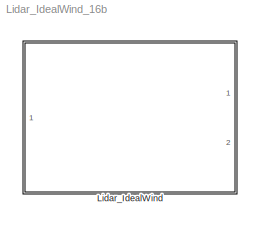
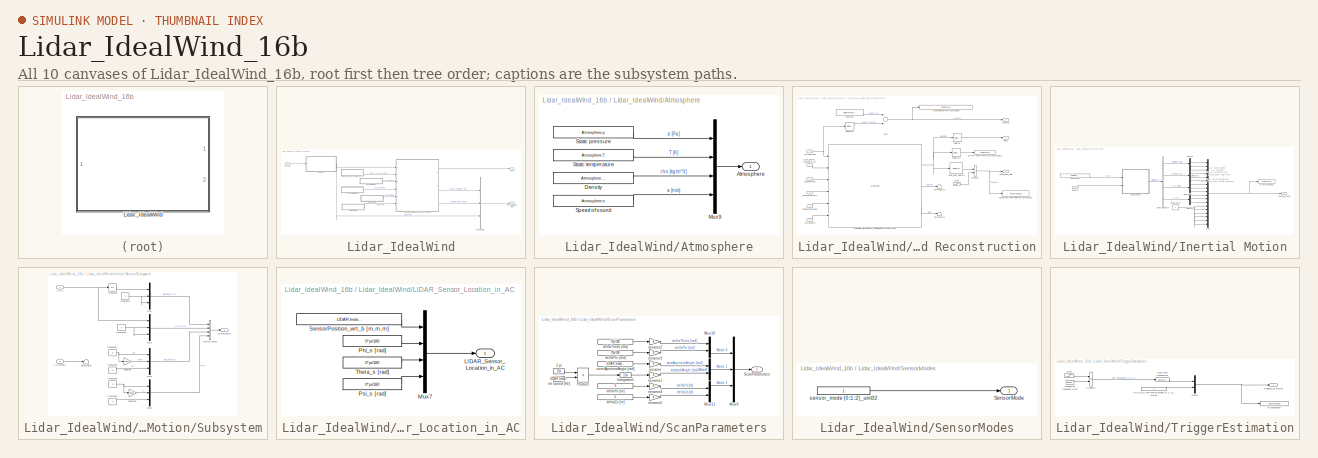
[diagram: thumbnail index - all 10 canvases of the model, root first then tree order]
MODEL Lidar_IdealWind_16b
KIND library
BLOCK [SubSystem] Lidar_IdealWind
  Ports = [1, 2]
  RequestExecContextInheritance = off
  SID = 159
BLOCK [SubSystem] Lidar_IdealWind/Atmosphere
  Ports = [0, 1]
  RequestExecContextInheritance = off
  SID = 161
BLOCK [Outport] Lidar_IdealWind/Atmosphere/Atmosphere
  IconDisplay = Port number
  SID = 167
BLOCK [Constant] Lidar_IdealWind/Atmosphere/Density
  SID = 162
  Value = Atmosphere.rho
BLOCK [Mux] Lidar_IdealWind/Atmosphere/Mux9
  DisplayOption = bar
  Ports = [4, 1]
  SID = 163
BLOCK [Constant] Lidar_IdealWind/Atmosphere/Speed of sound
  SID = 164
  Value = Atmosphere.a
BLOCK [Constant] Lidar_IdealWind/Atmosphere/Static pressure
  SID = 165
  Value = Atmosphere.p
BLOCK [Constant] Lidar_IdealWind/Atmosphere/Static temperature
  SID = 166
  Value = Atmosphere.T
BLOCK [BusCreator] Lidar_IdealWind/Bus\nCreator
  DisplayOption = bar
  InheritFromInputs = on
  Inputs = 3
  Ports = [3, 1]
  SID = 168
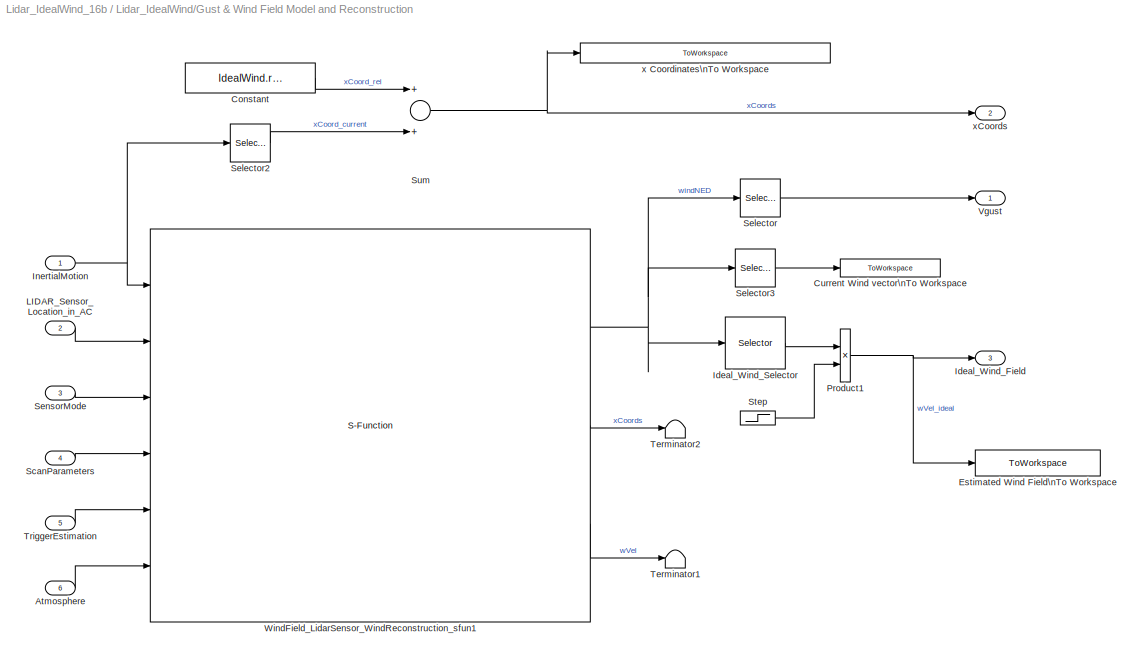
BLOCK [SubSystem] Lidar_IdealWind/Gust & Wind Field Model and Reconstruction
  Ports = [6, 3]
  RequestExecContextInheritance = off
  SID = 169
BLOCK [Inport] Lidar_IdealWind/Gust & Wind Field Model and Reconstruction/Atmosphere
  IconDisplay = Port number
  Port = 6
  SID = 175
BLOCK [Constant] Lidar_IdealWind/Gust & Wind Field Model and Reconstruction/Constant
  SID = 176
  Value = IdealWind.rel_x_coords
BLOCK [ToWorkspace] Lidar_IdealWind/Gust & Wind Field Model and Reconstruction/Current Wind vector\nTo Workspace
  MaxDataPoints = inf
  Ports = [1]
  SID = 264
  SampleTime = -1
  SaveFormat = Structure
  VariableName = Current_Wind
BLOCK [ToWorkspace] Lidar_IdealWind/Gust & Wind Field Model and Reconstruction/Estimated Wind Field\nTo Workspace
  Decimation = SimConfig.Logging.DecimationFactor
  MaxDataPoints = inf
  Ports = [1]
  SID = 267
  SampleTime = -1
  SaveFormat = Structure With Time
  VariableName = Estimated_Wind_Field
BLOCK [Outport] Lidar_IdealWind/Gust & Wind Field Model and Reconstruction/Ideal_Wind_Field
  IconDisplay = Port number
  Port = 3
  SID = 189
BLOCK [Selector] Lidar_IdealWind/Gust & Wind Field Model and Reconstruction/Ideal_Wind_Selector
  IndexOptions = Starting index (dialog)
  Indices = 4
  OutputSizes = IdealWind.n_nodes
  Ports = [1, 1]
  SID = 178
BLOCK [Inport] Lidar_IdealWind/Gust & Wind Field Model and Reconstruction/InertialMotion
  IconDisplay = Port number
  SID = 170
BLOCK [Inport] Lidar_IdealWind/Gust & Wind Field Model and Reconstruction/LIDAR_Sensor_Location_in_AC
  IconDisplay = Port number
  Port = 2
  SID = 171
BLOCK [Product] Lidar_IdealWind/Gust & Wind Field Model and Reconstruction/Product1
  InputSameDT = off
  OutDataTypeStr = Inherit: Inherit via internal rule
  Ports = [2, 1]
  SID = 268
  SaturateOnIntegerOverflow = off
BLOCK [Inport] Lidar_IdealWind/Gust & Wind Field Model and Reconstruction/ScanParameters
  IconDisplay = Port number
  Port = 4
  SID = 173
BLOCK [Selector] Lidar_IdealWind/Gust & Wind Field Model and Reconstruction/Selector
  IndexOptions = Index vector (dialog)
  Indices = 3
  OutputSizes = 1
  Ports = [1, 1]
  SID = 177
BLOCK [Selector] Lidar_IdealWind/Gust & Wind Field Model and Reconstruction/Selector2
  IndexOptions = Index vector (dialog)
  Indices = 1
  OutputSizes = 1
  Ports = [1, 1]
  SID = 179
BLOCK [Selector] Lidar_IdealWind/Gust & Wind Field Model and Reconstruction/Selector3
  IndexOptions = Index vector (dialog)
  Indices = 1:3
  OutputSizes = 1
  Ports = [1, 1]
  SID = 265
BLOCK [Inport] Lidar_IdealWind/Gust & Wind Field Model and Reconstruction/SensorMode
  IconDisplay = Port number
  Port = 3
  SID = 172
BLOCK [Step] Lidar_IdealWind/Gust & Wind Field Model and Reconstruction/Step
  SID = 269
  SampleTime = 0
  Time = WindReconstruction.StartEstimationTime
BLOCK [Sum] Lidar_IdealWind/Gust & Wind Field Model and Reconstruction/Sum
  InputSameDT = off
  OutDataTypeStr = Inherit: Inherit via internal rule
  Ports = [2, 1]
  SID = 180
  SaturateOnIntegerOverflow = off
BLOCK [Terminator] Lidar_IdealWind/Gust & Wind Field Model and Reconstruction/Terminator1
  SID = 181
BLOCK [Terminator] Lidar_IdealWind/Gust & Wind Field Model and Reconstruction/Terminator2
  SID = 182
BLOCK [Inport] Lidar_IdealWind/Gust & Wind Field Model and Reconstruction/TriggerEstimation
  IconDisplay = Port number
  Port = 5
  SID = 174
BLOCK [Outport] Lidar_IdealWind/Gust & Wind Field Model and Reconstruction/Vgust
  IconDisplay = Port number
  SID = 187
BLOCK [S-Function] Lidar_IdealWind/Gust & Wind Field Model and Reconstruction/WindField_LidarSensor_WindReconstruction_sfun1
  EnableBusSupport = off
  FunctionName = WindField_LidarSensor_WindReconstruction_sfun_v1d4p
  Parameters = Atmosphere,LIDAR,WindReconstruction
  Ports = [6, 3]
  SFcnIsStateOwnerBlock = off
  SFunctionDeploymentMode = off
  SID = 271
BLOCK [ToWorkspace] Lidar_IdealWind/Gust & Wind Field Model and Reconstruction/x Coordinates\nTo Workspace
  Decimation = SimConfig.Logging.DecimationFactor
  MaxDataPoints = inf
  Ports = [1]
  SID = 266
  SampleTime = -1
  SaveFormat = Structure With Time
  VariableName = xCoords_Estimated_Wind_Field_Nodes
BLOCK [Outport] Lidar_IdealWind/Gust & Wind Field Model and Reconstruction/xCoords
  IconDisplay = Port number
  Port = 2
  SID = 188
BLOCK [SubSystem] Lidar_IdealWind/Inertial Motion
  Ports = [1, 1]
  RequestExecContextInheritance = off
  SID = 190
BLOCK [BusSelector] Lidar_IdealWind/Inertial Motion/Bus\nSelector
  OutputSignals = DeltaPos_o [m],phi_theta_psi,V_K_o [m/s],p_q_r
  Ports = [1, 4]
  SID = 192
BLOCK [Constant] Lidar_IdealWind/Inertial Motion/Constant13
  SID = 193
  Value = 0
BLOCK [Constant] Lidar_IdealWind/Inertial Motion/Constant8
  SID = 194
  Value = CRM.Flight_Point.Vt
BLOCK [Demux] Lidar_IdealWind/Inertial Motion/Demux
  DisplayOption = bar
  Outputs = 3
  Ports = [1, 3]
  SID = 195
BLOCK [Demux] Lidar_IdealWind/Inertial Motion/Demux1
  DisplayOption = bar
  Outputs = 3
  Ports = [1, 3]
  SID = 196
BLOCK [Demux] Lidar_IdealWind/Inertial Motion/Demux2
  DisplayOption = bar
  Outputs = 3
  Ports = [1, 3]
  SID = 197
BLOCK [Demux] Lidar_IdealWind/Inertial Motion/Demux3
  DisplayOption = bar
  Outputs = 3
  Ports = [1, 3]
  SID = 198
BLOCK [Outport] Lidar_IdealWind/Inertial Motion/Inertial_Motion
  IconDisplay = Port number
  SID = 220
BLOCK [Mux] Lidar_IdealWind/Inertial Motion/Mux
  DisplayOption = bar
  Inputs = 18
  Ports = [18, 1]
  SID = 199
BLOCK [Inport] Lidar_IdealWind/Inertial Motion/Sensors
  IconDisplay = Port number
  SID = 191
BLOCK [SubSystem] Lidar_IdealWind/Inertial Motion/Subsystem
  Ports = [2, 1]
  RequestExecContextInheritance = off
  SID = 200
BLOCK [Inport] Lidar_IdealWind/Inertial Motion/Subsystem/ACOutputs
  IconDisplay = Port number
  Port = 2
  SID = 202
BLOCK [BusCreator] Lidar_IdealWind/Inertial Motion/Subsystem/Bus\nCreator
  DisplayOption = bar
  InheritFromInputs = on
  Inputs = 4
  Ports = [4, 1]
  SID = 203
BLOCK [Constant] Lidar_IdealWind/Inertial Motion/Subsystem/Constant1
  SID = 204
  Value = 0
BLOCK [Constant] Lidar_IdealWind/Inertial Motion/Subsystem/Constant2
  SID = 205
  Value = 0
BLOCK [Constant] Lidar_IdealWind/Inertial Motion/Subsystem/Constant3
  SID = 206
  Value = 0
BLOCK [Constant] Lidar_IdealWind/Inertial Motion/Subsystem/Constant4
  SID = 207
  Value = 0
BLOCK [Constant] Lidar_IdealWind/Inertial Motion/Subsystem/Constant5
  SID = 208
  Value = 0
BLOCK [Constant] Lidar_IdealWind/Inertial Motion/Subsystem/Constant6
  SID = 209
  Value = 0
BLOCK [Integrator] Lidar_IdealWind/Inertial Motion/Subsystem/Integrator
  Ports = [1, 1]
  SID = 210
BLOCK [Mux] Lidar_IdealWind/Inertial Motion/Subsystem/Mux
  DisplayOption = bar
  Inputs = 3
  Ports = [3, 1]
  SID = 211
BLOCK [Mux] Lidar_IdealWind/Inertial Motion/Subsystem/Mux1
  DisplayOption = bar
  Inputs = 3
  Ports = [3, 1]
  SID = 212
BLOCK [Mux] Lidar_IdealWind/Inertial Motion/Subsystem/Mux2
  DisplayOption = bar
  Inputs = 3
  Ports = [3, 1]
  SID = 213
BLOCK [Mux] Lidar_IdealWind/Inertial Motion/Subsystem/Mux3
  DisplayOption = bar
  Inputs = 3
  Ports = [3, 1]
  SID = 214
BLOCK [Outport] Lidar_IdealWind/Inertial Motion/Subsystem/RigidBody_o
  IconDisplay = Port number
  SID = 218
BLOCK [Terminator] Lidar_IdealWind/Inertial Motion/Subsystem/Terminator
  SID = 215
BLOCK [Inport] Lidar_IdealWind/Inertial Motion/Subsystem/VTAS
  IconDisplay = Port number
  SID = 201
BLOCK [Gain] Lidar_IdealWind/Inertial Motion/Subsystem/deg2rad
  Gain = pi/180
  OutDataTypeStr = Inherit: Inherit via internal rule
  ParamDataTypeStr = Inherit: Inherit via internal rule
  SID = 216
  SaturateOnIntegerOverflow = off
BLOCK [Gain] Lidar_IdealWind/Inertial Motion/Subsystem/deg2rad1
  Gain = pi/180
  OutDataTypeStr = Inherit: Inherit via internal rule
  ParamDataTypeStr = Inherit: Inherit via internal rule
  SID = 217
  SaturateOnIntegerOverflow = off
BLOCK [ToWorkspace] Lidar_IdealWind/Inertial Motion/To Workspace2
  Decimation = SimConfig.Logging.DecimationFactor
  MaxDataPoints = inf
  Ports = [1]
  SID = 219
  SampleTime = -1
  SaveFormat = Structure
  VariableName = Inertial_Motion
BLOCK [SubSystem] Lidar_IdealWind/LIDAR_Sensor_Location_in_AC
  Ports = [0, 1]
  RequestExecContextInheritance = off
  SID = 222
BLOCK [Outport] Lidar_IdealWind/LIDAR_Sensor_Location_in_AC/LIDAR_Sensor_Location_in_AC
  IconDisplay = Port number
  SID = 228
BLOCK [Mux] Lidar_IdealWind/LIDAR_Sensor_Location_in_AC/Mux7
  DisplayOption = bar
  Ports = [4, 1]
  SID = 223
BLOCK [Constant] Lidar_IdealWind/LIDAR_Sensor_Location_in_AC/Phi_s [rad]
  SID = 224
  Value = 0*pi/180
BLOCK [Constant] Lidar_IdealWind/LIDAR_Sensor_Location_in_AC/Psi_s [rad]
  SID = 225
  Value = 0*pi/180
BLOCK [Constant] Lidar_IdealWind/LIDAR_Sensor_Location_in_AC/SensorPosition_wrt_b [m,m,m]
  SID = 226
  Value = LIDAR.Installation.Position_b
BLOCK [Constant] Lidar_IdealWind/LIDAR_Sensor_Location_in_AC/Theta_s [rad]
  SID = 227
  Value = 0*pi/180
BLOCK [Outport] Lidar_IdealWind/Reconstructed_Wind
  IconDisplay = Port number
  Port = 2
  SID = 263
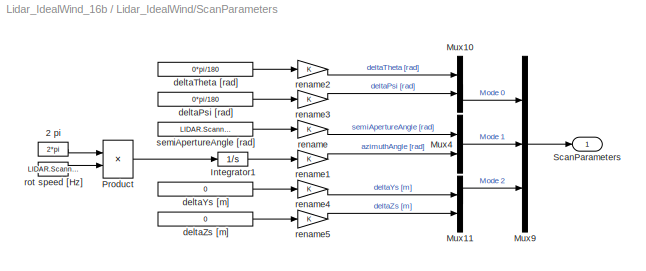
BLOCK [SubSystem] Lidar_IdealWind/ScanParameters
  Ports = [0, 1]
  RequestExecContextInheritance = off
  SID = 229
BLOCK [Constant] Lidar_IdealWind/ScanParameters/2 pi
  SID = 230
  Value = 2*pi
BLOCK [Integrator] Lidar_IdealWind/ScanParameters/Integrator1
  Ports = [1, 1]
  SID = 231
BLOCK [Mux] Lidar_IdealWind/ScanParameters/Mux10
  DisplayOption = bar
  Inputs = 2
  Ports = [2, 1]
  SID = 232
BLOCK [Mux] Lidar_IdealWind/ScanParameters/Mux11
  DisplayOption = bar
  Inputs = 2
  Ports = [2, 1]
  SID = 233
BLOCK [Mux] Lidar_IdealWind/ScanParameters/Mux4
  DisplayOption = bar
  Inputs = 2
  Ports = [2, 1]
  SID = 234
BLOCK [Mux] Lidar_IdealWind/ScanParameters/Mux9
  DisplayOption = bar
  Inputs = 3
  Ports = [3, 1]
  SID = 235
BLOCK [Product] Lidar_IdealWind/ScanParameters/Product
  InputSameDT = off
  OutDataTypeStr = Inherit: Inherit via internal rule
  Ports = [2, 1]
  SID = 236
  SaturateOnIntegerOverflow = off
BLOCK [Outport] Lidar_IdealWind/ScanParameters/ScanParameters
  IconDisplay = Port number
  SID = 249
BLOCK [Constant] Lidar_IdealWind/ScanParameters/deltaPsi [rad]
  OutDataTypeStr = double
  SID = 237
  Value = 0*pi/180
BLOCK [Constant] Lidar_IdealWind/ScanParameters/deltaTheta [rad]
  OutDataTypeStr = double
  SID = 238
  Value = 0*pi/180
BLOCK [Constant] Lidar_IdealWind/ScanParameters/deltaYs [m]
  OutDataTypeStr = double
  SID = 239
  Value = 0
BLOCK [Constant] Lidar_IdealWind/ScanParameters/deltaZs [m]
  OutDataTypeStr = double
  SID = 240
  Value = 0
BLOCK [Gain] Lidar_IdealWind/ScanParameters/rename
  OutDataTypeStr = Inherit: Inherit via internal rule
  ParamDataTypeStr = Inherit: Inherit via internal rule
  SID = 241
  SaturateOnIntegerOverflow = off
BLOCK [Gain] Lidar_IdealWind/ScanParameters/rename1
  OutDataTypeStr = Inherit: Inherit via internal rule
  ParamDataTypeStr = Inherit: Inherit via internal rule
  SID = 242
  SaturateOnIntegerOverflow = off
BLOCK [Gain] Lidar_IdealWind/ScanParameters/rename2
  OutDataTypeStr = Inherit: Inherit via internal rule
  ParamDataTypeStr = Inherit: Inherit via internal rule
  SID = 243
  SaturateOnIntegerOverflow = off
BLOCK [Gain] Lidar_IdealWind/ScanParameters/rename3
  OutDataTypeStr = Inherit: Inherit via internal rule
  ParamDataTypeStr = Inherit: Inherit via internal rule
  SID = 244
  SaturateOnIntegerOverflow = off
BLOCK [Gain] Lidar_IdealWind/ScanParameters/rename4
  OutDataTypeStr = Inherit: Inherit via internal rule
  ParamDataTypeStr = Inherit: Inherit via internal rule
  SID = 245
  SaturateOnIntegerOverflow = off
BLOCK [Gain] Lidar_IdealWind/ScanParameters/rename5
  OutDataTypeStr = Inherit: Inherit via internal rule
  ParamDataTypeStr = Inherit: Inherit via internal rule
  SID = 246
  SaturateOnIntegerOverflow = off
BLOCK [Constant] Lidar_IdealWind/ScanParameters/rot speed [Hz]
  SID = 247
  Value = LIDAR.Scanner.RotationFrequency
BLOCK [Constant] Lidar_IdealWind/ScanParameters/semiApertureAngle [rad]
  OutDataTypeStr = double
  SID = 248
  Value = LIDAR.Scanner.SemiApertureAngle*pi/180
BLOCK [SubSystem] Lidar_IdealWind/SensorModes
  Ports = [0, 1]
  RequestExecContextInheritance = off
  SID = 250
BLOCK [Outport] Lidar_IdealWind/SensorModes/SensorMode
  IconDisplay = Port number
  SID = 252
BLOCK [Constant] Lidar_IdealWind/SensorModes/sensor_mode {0::1::2}_uint32
  OutDataTypeStr = uint32
  SID = 251
BLOCK [Inport] Lidar_IdealWind/Sensors
  IconDisplay = Port number
  SID = 160
BLOCK [SubSystem] Lidar_IdealWind/TriggerEstimation
  Ports = [0, 1]
  RequestExecContextInheritance = off
  SID = 253
BLOCK [DataTypeConversion] Lidar_IdealWind/TriggerEstimation/Data Type Conversion
  OutDataTypeStr = uint32
  RndMeth = Floor
  SID = 254
  SaturateOnIntegerOverflow = off
BLOCK [Mux] Lidar_IdealWind/TriggerEstimation/Mux12
  DisplayOption = bar
  Inputs = 2
  Ports = [2, 1]
  SID = 255
BLOCK [Product] Lidar_IdealWind/TriggerEstimation/Product1
  InputSameDT = off
  OutDataTypeStr = Inherit: Inherit via internal rule
  Ports = [2, 1]
  SID = 256
  SaturateOnIntegerOverflow = off
BLOCK [Reference] Lidar_IdealWind/TriggerEstimation/Repeating Sequence Stair  REF=simulink/Sources/Repeating\nSequence\nStair
  ConRadixGroup = Best Precision: Vector-wise
  LockScale = off
  OutDataType = float('double')
  OutDataTypeStr = float('double')
  OutMax = []
  OutMin = []
  OutScaling = 2^-12
  OutValues = [0 zeros(1,(1/(10*SimConfig.SampleTime))-1)].'
  OutputDataTypeScalingMode = Specify via dialog
  Ports = [0, 1]
  SID = 257
  SourceBlock = simulink/Sources/Repeating\nSequence\nStair
  SourceType = Repeating Sequence Stair
  tsamp = -1
BLOCK [Step] Lidar_IdealWind/TriggerEstimation/Step
  SID = 258
  SampleTime = 0
  Time = WindReconstruction.StartEstimationTime
BLOCK [ToWorkspace] Lidar_IdealWind/TriggerEstimation/To Workspace
  MaxDataPoints = inf
  Ports = [1]
  SID = 259
  SampleTime = -1
  SaveFormat = Structure
  VariableName = TriggerEstimation
BLOCK [Outport] Lidar_IdealWind/TriggerEstimation/TriggerEstimation
  IconDisplay = Port number
  SID = 261
BLOCK [Constant] Lidar_IdealWind/TriggerEstimation/UNUSED estimation_mode {0::1::2}_uint32
  OutDataTypeStr = uint32
  SID = 260
  Value = 2
BLOCK [Outport] Lidar_IdealWind/Vgust
  IconDisplay = Port number
  SID = 262
ANNOTATION Lidar_IdealWind/Inertial Motion: 1-3: delta position\n4-6: attitude\n7-9: inertial speed (flight path)\n10-12:rotational rates\n13-15: inertial acceleration\n16-18: third order position derivative
LINE Lidar_IdealWind/Atmosphere/Density:1 -> Lidar_IdealWind/Atmosphere/Mux9:3
LINE Lidar_IdealWind/Atmosphere/Mux9:1 -> Lidar_IdealWind/Atmosphere/Atmosphere:1
LINE Lidar_IdealWind/Atmosphere/Speed of sound:1 -> Lidar_IdealWind/Atmosphere/Mux9:4
LINE Lidar_IdealWind/Atmosphere/Static pressure:1 -> Lidar_IdealWind/Atmosphere/Mux9:1
LINE Lidar_IdealWind/Atmosphere/Static temperature:1 -> Lidar_IdealWind/Atmosphere/Mux9:2
LINE Lidar_IdealWind/Atmosphere:1 -> Lidar_IdealWind/Gust & Wind Field Model and Reconstruction:6
LINE Lidar_IdealWind/Bus\nCreator:1 -> Lidar_IdealWind/Reconstructed_Wind:1
LINE Lidar_IdealWind/Gust & Wind Field Model and Reconstruction/Atmosphere:1 -> Lidar_IdealWind/Gust & Wind Field Model and Reconstruction/WindField_LidarSensor_WindReconstruction_sfun1:6
LINE Lidar_IdealWind/Gust & Wind Field Model and Reconstruction/Constant:1 -> Lidar_IdealWind/Gust & Wind Field Model and Reconstruction/Sum:1
LINE Lidar_IdealWind/Gust & Wind Field Model and Reconstruction/Ideal_Wind_Selector:1 -> Lidar_IdealWind/Gust & Wind Field Model and Reconstruction/Product1:1
NET Lidar_IdealWind/Gust & Wind Field Model and Reconstruction/InertialMotion:1 -> Lidar_IdealWind/Gust & Wind Field Model and Reconstruction/Selector2:1, Lidar_IdealWind/Gust & Wind Field Model and Reconstruction/WindField_LidarSensor_WindReconstruction_sfun1:1
LINE Lidar_IdealWind/Gust & Wind Field Model and Reconstruction/LIDAR_Sensor_Location_in_AC:1 -> Lidar_IdealWind/Gust & Wind Field Model and Reconstruction/WindField_LidarSensor_WindReconstruction_sfun1:2
NET Lidar_IdealWind/Gust & Wind Field Model and Reconstruction/Product1:1 -> Lidar_IdealWind/Gust & Wind Field Model and Reconstruction/Estimated Wind Field\nTo Workspace:1, Lidar_IdealWind/Gust & Wind Field Model and Reconstruction/Ideal_Wind_Field:1
LINE Lidar_IdealWind/Gust & Wind Field Model and Reconstruction/ScanParameters:1 -> Lidar_IdealWind/Gust & Wind Field Model and Reconstruction/WindField_LidarSensor_WindReconstruction_sfun1:4
LINE Lidar_IdealWind/Gust & Wind Field Model and Reconstruction/Selector2:1 -> Lidar_IdealWind/Gust & Wind Field Model and Reconstruction/Sum:2
LINE Lidar_IdealWind/Gust & Wind Field Model and Reconstruction/Selector3:1 -> Lidar_IdealWind/Gust & Wind Field Model and Reconstruction/Current Wind vector\nTo Workspace:1
LINE Lidar_IdealWind/Gust & Wind Field Model and Reconstruction/Selector:1 -> Lidar_IdealWind/Gust & Wind Field Model and Reconstruction/Vgust:1
LINE Lidar_IdealWind/Gust & Wind Field Model and Reconstruction/SensorMode:1 -> Lidar_IdealWind/Gust & Wind Field Model and Reconstruction/WindField_LidarSensor_WindReconstruction_sfun1:3
LINE Lidar_IdealWind/Gust & Wind Field Model and Reconstruction/Step:1 -> Lidar_IdealWind/Gust & Wind Field Model and Reconstruction/Product1:2
NET Lidar_IdealWind/Gust & Wind Field Model and Reconstruction/Sum:1 -> Lidar_IdealWind/Gust & Wind Field Model and Reconstruction/x Coordinates\nTo Workspace:1, Lidar_IdealWind/Gust & Wind Field Model and Reconstruction/xCoords:1
LINE Lidar_IdealWind/Gust & Wind Field Model and Reconstruction/TriggerEstimation:1 -> Lidar_IdealWind/Gust & Wind Field Model and Reconstruction/WindField_LidarSensor_WindReconstruction_sfun1:5
NET Lidar_IdealWind/Gust & Wind Field Model and Reconstruction/WindField_LidarSensor_WindReconstruction_sfun1:1 -> Lidar_IdealWind/Gust & Wind Field Model and Reconstruction/Ideal_Wind_Selector:1, Lidar_IdealWind/Gust & Wind Field Model and Reconstruction/Selector3:1, Lidar_IdealWind/Gust & Wind Field Model and Reconstruction/Selector:1
LINE Lidar_IdealWind/Gust & Wind Field Model and Reconstruction/WindField_LidarSensor_WindReconstruction_sfun1:2 -> Lidar_IdealWind/Gust & Wind Field Model and Reconstruction/Terminator2:1
LINE Lidar_IdealWind/Gust & Wind Field Model and Reconstruction/WindField_LidarSensor_WindReconstruction_sfun1:3 -> Lidar_IdealWind/Gust & Wind Field Model and Reconstruction/Terminator1:1
LINE Lidar_IdealWind/Gust & Wind Field Model and Reconstruction:1 -> Lidar_IdealWind/Vgust:1
LINE Lidar_IdealWind/Gust & Wind Field Model and Reconstruction:2 -> Lidar_IdealWind/Bus\nCreator:1
LINE Lidar_IdealWind/Gust & Wind Field Model and Reconstruction:3 -> Lidar_IdealWind/Bus\nCreator:2
LINE Lidar_IdealWind/Inertial Motion/Bus\nSelector:1 -> Lidar_IdealWind/Inertial Motion/Demux:1
LINE Lidar_IdealWind/Inertial Motion/Bus\nSelector:2 -> Lidar_IdealWind/Inertial Motion/Demux1:1
LINE Lidar_IdealWind/Inertial Motion/Bus\nSelector:3 -> Lidar_IdealWind/Inertial Motion/Demux2:1
LINE Lidar_IdealWind/Inertial Motion/Bus\nSelector:4 -> Lidar_IdealWind/Inertial Motion/Demux3:1
NET Lidar_IdealWind/Inertial Motion/Constant13:1 -> Lidar_IdealWind/Inertial Motion/Mux:13, Lidar_IdealWind/Inertial Motion/Mux:14, Lidar_IdealWind/Inertial Motion/Mux:15, Lidar_IdealWind/Inertial Motion/Mux:16, Lidar_IdealWind/Inertial Motion/Mux:17, Lidar_IdealWind/Inertial Motion/Mux:18
LINE Lidar_IdealWind/Inertial Motion/Constant8:1 -> Lidar_IdealWind/Inertial Motion/Subsystem:1
LINE Lidar_IdealWind/Inertial Motion/Demux1:1 -> Lidar_IdealWind/Inertial Motion/Mux:4
LINE Lidar_IdealWind/Inertial Motion/Demux1:2 -> Lidar_IdealWind/Inertial Motion/Mux:5
LINE Lidar_IdealWind/Inertial Motion/Demux1:3 -> Lidar_IdealWind/Inertial Motion/Mux:6
LINE Lidar_IdealWind/Inertial Motion/Demux2:1 -> Lidar_IdealWind/Inertial Motion/Mux:7
LINE Lidar_IdealWind/Inertial Motion/Demux2:2 -> Lidar_IdealWind/Inertial Motion/Mux:8
LINE Lidar_IdealWind/Inertial Motion/Demux2:3 -> Lidar_IdealWind/Inertial Motion/Mux:9
LINE Lidar_IdealWind/Inertial Motion/Demux3:1 -> Lidar_IdealWind/Inertial Motion/Mux:10
LINE Lidar_IdealWind/Inertial Motion/Demux3:2 -> Lidar_IdealWind/Inertial Motion/Mux:11
LINE Lidar_IdealWind/Inertial Motion/Demux3:3 -> Lidar_IdealWind/Inertial Motion/Mux:12
LINE Lidar_IdealWind/Inertial Motion/Demux:1 -> Lidar_IdealWind/Inertial Motion/Mux:1
LINE Lidar_IdealWind/Inertial Motion/Demux:2 -> Lidar_IdealWind/Inertial Motion/Mux:2
LINE Lidar_IdealWind/Inertial Motion/Demux:3 -> Lidar_IdealWind/Inertial Motion/Mux:3
NET Lidar_IdealWind/Inertial Motion/Mux:1 -> Lidar_IdealWind/Inertial Motion/Inertial_Motion:1, Lidar_IdealWind/Inertial Motion/To Workspace2:1
LINE Lidar_IdealWind/Inertial Motion/Sensors:1 -> Lidar_IdealWind/Inertial Motion/Subsystem:2
LINE Lidar_IdealWind/Inertial Motion/Subsystem/ACOutputs:1 -> Lidar_IdealWind/Inertial Motion/Subsystem/Terminator:1
LINE Lidar_IdealWind/Inertial Motion/Subsystem/Bus\nCreator:1 -> Lidar_IdealWind/Inertial Motion/Subsystem/RigidBody_o:1
NET Lidar_IdealWind/Inertial Motion/Subsystem/Constant1:1 -> Lidar_IdealWind/Inertial Motion/Subsystem/Mux:2, Lidar_IdealWind/Inertial Motion/Subsystem/Mux:3
NET Lidar_IdealWind/Inertial Motion/Subsystem/Constant2:1 -> Lidar_IdealWind/Inertial Motion/Subsystem/Mux1:2, Lidar_IdealWind/Inertial Motion/Subsystem/Mux1:3
LINE Lidar_IdealWind/Inertial Motion/Subsystem/Constant3:1 -> Lidar_IdealWind/Inertial Motion/Subsystem/Mux2:3
NET Lidar_IdealWind/Inertial Motion/Subsystem/Constant4:1 -> Lidar_IdealWind/Inertial Motion/Subsystem/Mux2:1, Lidar_IdealWind/Inertial Motion/Subsystem/deg2rad:1
NET Lidar_IdealWind/Inertial Motion/Subsystem/Constant5:1 -> Lidar_IdealWind/Inertial Motion/Subsystem/Mux3:1, Lidar_IdealWind/Inertial Motion/Subsystem/deg2rad1:1
LINE Lidar_IdealWind/Inertial Motion/Subsystem/Constant6:1 -> Lidar_IdealWind/Inertial Motion/Subsystem/Mux3:3
LINE Lidar_IdealWind/Inertial Motion/Subsystem/Integrator:1 -> Lidar_IdealWind/Inertial Motion/Subsystem/Mux:1
LINE Lidar_IdealWind/Inertial Motion/Subsystem/Mux1:1 -> Lidar_IdealWind/Inertial Motion/Subsystem/Bus\nCreator:2
LINE Lidar_IdealWind/Inertial Motion/Subsystem/Mux2:1 -> Lidar_IdealWind/Inertial Motion/Subsystem/Bus\nCreator:3
LINE Lidar_IdealWind/Inertial Motion/Subsystem/Mux3:1 -> Lidar_IdealWind/Inertial Motion/Subsystem/Bus\nCreator:4
LINE Lidar_IdealWind/Inertial Motion/Subsystem/Mux:1 -> Lidar_IdealWind/Inertial Motion/Subsystem/Bus\nCreator:1
NET Lidar_IdealWind/Inertial Motion/Subsystem/VTAS:1 -> Lidar_IdealWind/Inertial Motion/Subsystem/Integrator:1, Lidar_IdealWind/Inertial Motion/Subsystem/Mux1:1
LINE Lidar_IdealWind/Inertial Motion/Subsystem/deg2rad1:1 -> Lidar_IdealWind/Inertial Motion/Subsystem/Mux3:2
LINE Lidar_IdealWind/Inertial Motion/Subsystem/deg2rad:1 -> Lidar_IdealWind/Inertial Motion/Subsystem/Mux2:2
LINE Lidar_IdealWind/Inertial Motion/Subsystem:1 -> Lidar_IdealWind/Inertial Motion/Bus\nSelector:1
NET Lidar_IdealWind/Inertial Motion:1 -> Lidar_IdealWind/Bus\nCreator:3, Lidar_IdealWind/Gust & Wind Field Model and Reconstruction:1
LINE Lidar_IdealWind/LIDAR_Sensor_Location_in_AC/Mux7:1 -> Lidar_IdealWind/LIDAR_Sensor_Location_in_AC/LIDAR_Sensor_Location_in_AC:1
LINE Lidar_IdealWind/LIDAR_Sensor_Location_in_AC/Phi_s [rad]:1 -> Lidar_IdealWind/LIDAR_Sensor_Location_in_AC/Mux7:2
LINE Lidar_IdealWind/LIDAR_Sensor_Location_in_AC/Psi_s [rad]:1 -> Lidar_IdealWind/LIDAR_Sensor_Location_in_AC/Mux7:4
LINE Lidar_IdealWind/LIDAR_Sensor_Location_in_AC/SensorPosition_wrt_b [m,m,m]:1 -> Lidar_IdealWind/LIDAR_Sensor_Location_in_AC/Mux7:1
LINE Lidar_IdealWind/LIDAR_Sensor_Location_in_AC/Theta_s [rad]:1 -> Lidar_IdealWind/LIDAR_Sensor_Location_in_AC/Mux7:3
LINE Lidar_IdealWind/LIDAR_Sensor_Location_in_AC:1 -> Lidar_IdealWind/Gust & Wind Field Model and Reconstruction:2
LINE Lidar_IdealWind/ScanParameters/2 pi:1 -> Lidar_IdealWind/ScanParameters/Product:1
LINE Lidar_IdealWind/ScanParameters/Integrator1:1 -> Lidar_IdealWind/ScanParameters/rename1:1
LINE Lidar_IdealWind/ScanParameters/Mux10:1 -> Lidar_IdealWind/ScanParameters/Mux9:1
LINE Lidar_IdealWind/ScanParameters/Mux11:1 -> Lidar_IdealWind/ScanParameters/Mux9:3
LINE Lidar_IdealWind/ScanParameters/Mux4:1 -> Lidar_IdealWind/ScanParameters/Mux9:2
LINE Lidar_IdealWind/ScanParameters/Mux9:1 -> Lidar_IdealWind/ScanParameters/ScanParameters:1
LINE Lidar_IdealWind/ScanParameters/Product:1 -> Lidar_IdealWind/ScanParameters/Integrator1:1
LINE Lidar_IdealWind/ScanParameters/deltaPsi [rad]:1 -> Lidar_IdealWind/ScanParameters/rename3:1
LINE Lidar_IdealWind/ScanParameters/deltaTheta [rad]:1 -> Lidar_IdealWind/ScanParameters/rename2:1
LINE Lidar_IdealWind/ScanParameters/deltaYs [m]:1 -> Lidar_IdealWind/ScanParameters/rename4:1
LINE Lidar_IdealWind/ScanParameters/deltaZs [m]:1 -> Lidar_IdealWind/ScanParameters/rename5:1
LINE Lidar_IdealWind/ScanParameters/rename1:1 -> Lidar_IdealWind/ScanParameters/Mux4:2
LINE Lidar_IdealWind/ScanParameters/rename2:1 -> Lidar_IdealWind/ScanParameters/Mux10:1
LINE Lidar_IdealWind/ScanParameters/rename3:1 -> Lidar_IdealWind/ScanParameters/Mux10:2
LINE Lidar_IdealWind/ScanParameters/rename4:1 -> Lidar_IdealWind/ScanParameters/Mux11:1
LINE Lidar_IdealWind/ScanParameters/rename5:1 -> Lidar_IdealWind/ScanParameters/Mux11:2
LINE Lidar_IdealWind/ScanParameters/rename:1 -> Lidar_IdealWind/ScanParameters/Mux4:1
LINE Lidar_IdealWind/ScanParameters/rot speed [Hz]:1 -> Lidar_IdealWind/ScanParameters/Product:2
LINE Lidar_IdealWind/ScanParameters/semiApertureAngle [rad]:1 -> Lidar_IdealWind/ScanParameters/rename:1
LINE Lidar_IdealWind/ScanParameters:1 -> Lidar_IdealWind/Gust & Wind Field Model and Reconstruction:4
LINE Lidar_IdealWind/SensorModes/sensor_mode {0::1::2}_uint32:1 -> Lidar_IdealWind/SensorModes/SensorMode:1
LINE Lidar_IdealWind/SensorModes:1 -> Lidar_IdealWind/Gust & Wind Field Model and Reconstruction:3
LINE Lidar_IdealWind/Sensors:1 -> Lidar_IdealWind/Inertial Motion:1
LINE Lidar_IdealWind/TriggerEstimation/Data Type Conversion:1 -> Lidar_IdealWind/TriggerEstimation/Mux12:1
NET Lidar_IdealWind/TriggerEstimation/Mux12:1 -> Lidar_IdealWind/TriggerEstimation/To Workspace:1, Lidar_IdealWind/TriggerEstimation/TriggerEstimation:1
LINE Lidar_IdealWind/TriggerEstimation/Product1:1 -> Lidar_IdealWind/TriggerEstimation/Data Type Conversion:1
LINE Lidar_IdealWind/TriggerEstimation/Repeating Sequence Stair:1 -> Lidar_IdealWind/TriggerEstimation/Product1:2
LINE Lidar_IdealWind/TriggerEstimation/Step:1 -> Lidar_IdealWind/TriggerEstimation/Product1:1
LINE Lidar_IdealWind/TriggerEstimation/UNUSED estimation_mode {0::1::2}_uint32:1 -> Lidar_IdealWind/TriggerEstimation/Mux12:2
LINE Lidar_IdealWind/TriggerEstimation:1 -> Lidar_IdealWind/Gust & Wind Field Model and Reconstruction:5
note: NET lines group one-source signal fan-out (src -> all destinations, sorted); 1:1 wires keep LINE
